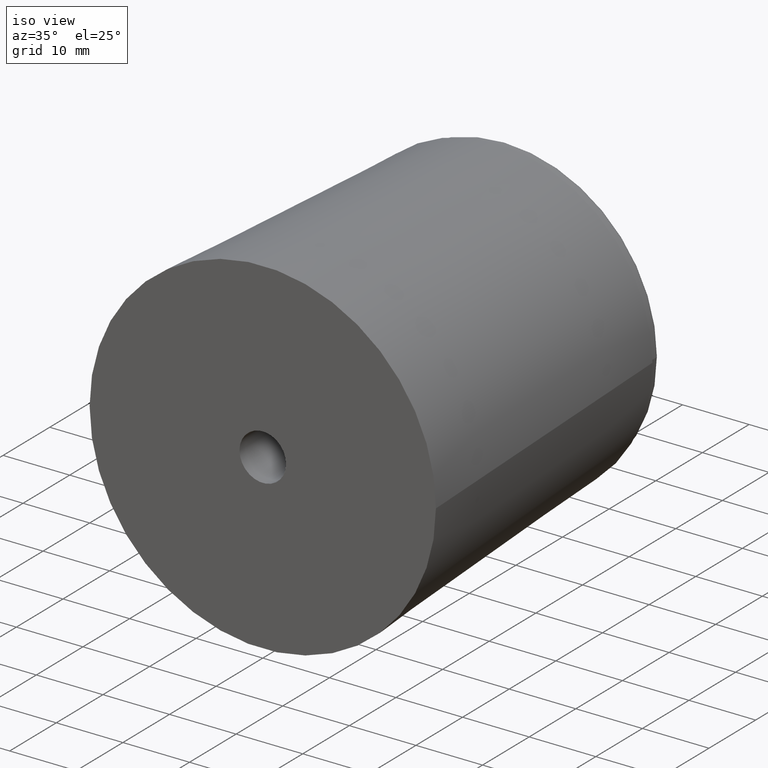
[diagram: clean part render]
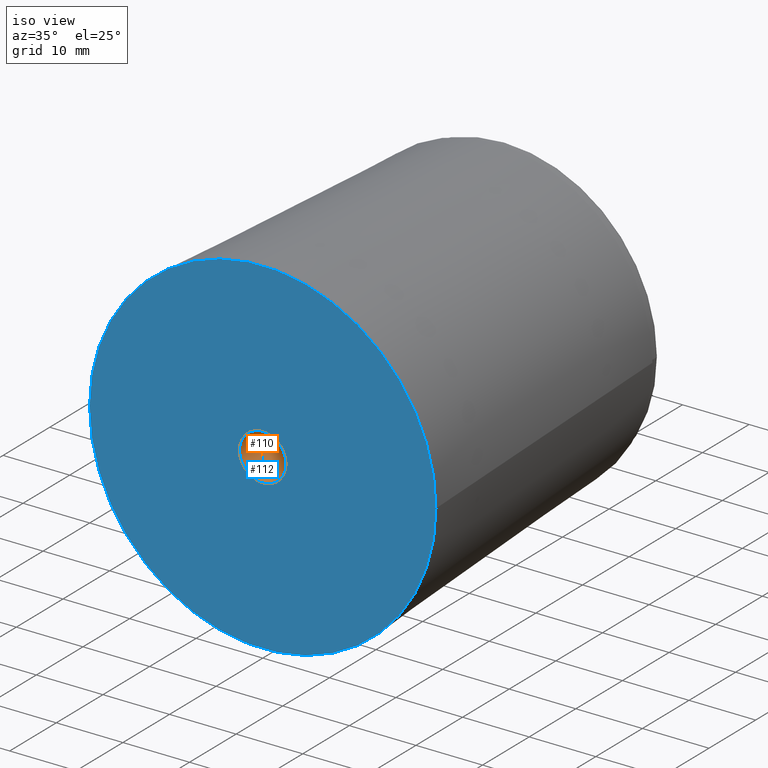
[diagram: same view with the hole feature highlighted: cylindrical wall and planar end face, labeled with their STEP entity ids]
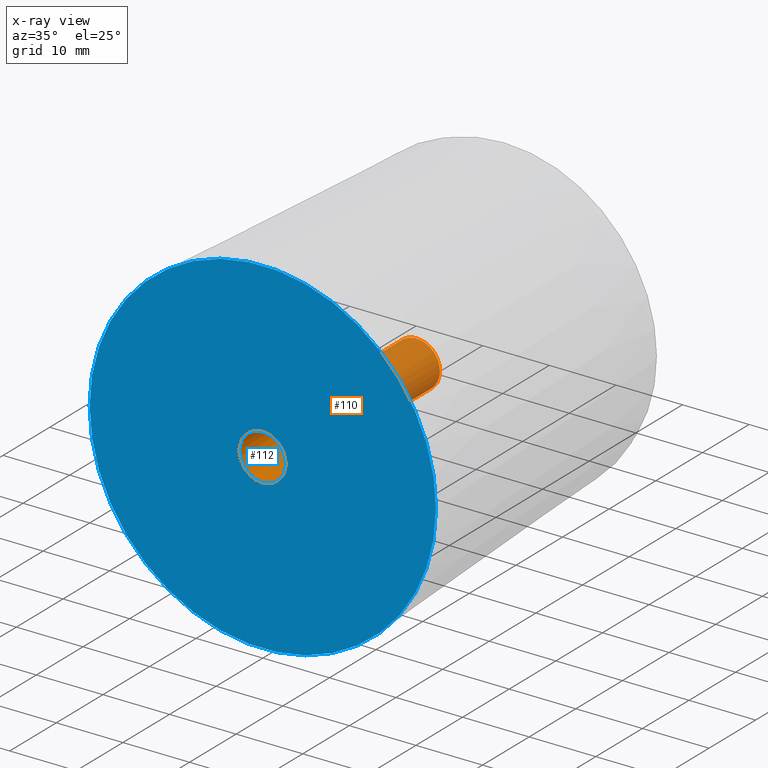
[diagram: x-ray of the same camera — body ghosted, the hole faces saturated]
A machine part, iso view. The highlighted faces form one hole feature of diameter 7 mm: the cylindrical wall (entity #110, orange) and its adjacent planar end face (entity #112, blue) — they share a circular edge in the B-rep.
The next image is the same camera in x-ray (body ghosted, the hole faces saturated) — the bore reads through the body.
Wall:
#22=CYLINDRICAL_SURFACE('',#127,3.5);
#28=FACE_BOUND('',#52,.T.);
#37=FACE_OUTER_BOUND('',#51,.T.);
#51=EDGE_LOOP('',(#96));
#52=EDGE_LOOP('',(#97));
#64=CIRCLE('',#125,3.5);
#65=CIRCLE('',#128,3.5);
#73=VERTEX_POINT('',#187);
#74=VERTEX_POINT('',#191);
#82=EDGE_CURVE('',#73,#73,#64,.T.);
#83=EDGE_CURVE('',#74,#74,#65,.T.);
#96=ORIENTED_EDGE('',*,*,#83,.F.);
#97=ORIENTED_EDGE('',*,*,#82,.T.);
#110=ADVANCED_FACE('',(#37,#28),#22,.F.);
#125=AXIS2_PLACEMENT_3D('',#188,#154,#155);
#127=AXIS2_PLACEMENT_3D('',#190,#158,#159);
#128=AXIS2_PLACEMENT_3D('',#192,#160,#161);
#154=DIRECTION('center_axis',(0.,1.,0.));
#155=DIRECTION('ref_axis',(-1.,0.,0.));
#158=DIRECTION('center_axis',(0.,1.,0.));
#159=DIRECTION('ref_axis',(-1.,0.,0.));
#160=DIRECTION('center_axis',(0.,1.,0.));
#161=DIRECTION('ref_axis',(-1.,0.,0.));
#187=CARTESIAN_POINT('',(3.5,33.,-4.28626379701574E-16));
#188=CARTESIAN_POINT('Origin',(0.,33.,0.));
#190=CARTESIAN_POINT('Origin',(0.,24.,0.));
#191=CARTESIAN_POINT('',(3.5,0.,-4.28626379701574E-16));
#192=CARTESIAN_POINT('Origin',(0.,0.,0.));
End face:
#19=PLANE('',#131);
#30=FACE_BOUND('',#56,.T.);
#39=FACE_OUTER_BOUND('',#55,.T.);
#55=EDGE_LOOP('',(#100));
#56=EDGE_LOOP('',(#101));
#65=CIRCLE('',#128,3.5);
#67=CIRCLE('',#132,26.);
#74=VERTEX_POINT('',#191);
#76=VERTEX_POINT('',#197);
#83=EDGE_CURVE('',#74,#74,#65,.T.);
#85=EDGE_CURVE('',#76,#76,#67,.T.);
#100=ORIENTED_EDGE('',*,*,#85,.F.);
#101=ORIENTED_EDGE('',*,*,#83,.T.);
#112=ADVANCED_FACE('',(#39,#30),#19,.F.);
#128=AXIS2_PLACEMENT_3D('',#192,#160,#161);
#131=AXIS2_PLACEMENT_3D('',#196,#166,#167);
#132=AXIS2_PLACEMENT_3D('',#198,#168,#169);
#160=DIRECTION('center_axis',(0.,1.,0.));
#161=DIRECTION('ref_axis',(-1.,0.,0.));
#166=DIRECTION('center_axis',(0.,1.,0.));
#167=DIRECTION('ref_axis',(0.,0.,1.));
#168=DIRECTION('center_axis',(0.,1.,0.));
#169=DIRECTION('ref_axis',(1.,0.,0.));
#191=CARTESIAN_POINT('',(3.5,0.,-4.28626379701574E-16));
#192=CARTESIAN_POINT('Origin',(0.,0.,0.));
#196=CARTESIAN_POINT('Origin',(0.,0.,0.));
#197=CARTESIAN_POINT('',(26.,0.,0.));
#198=CARTESIAN_POINT('Origin',(0.,0.,0.));